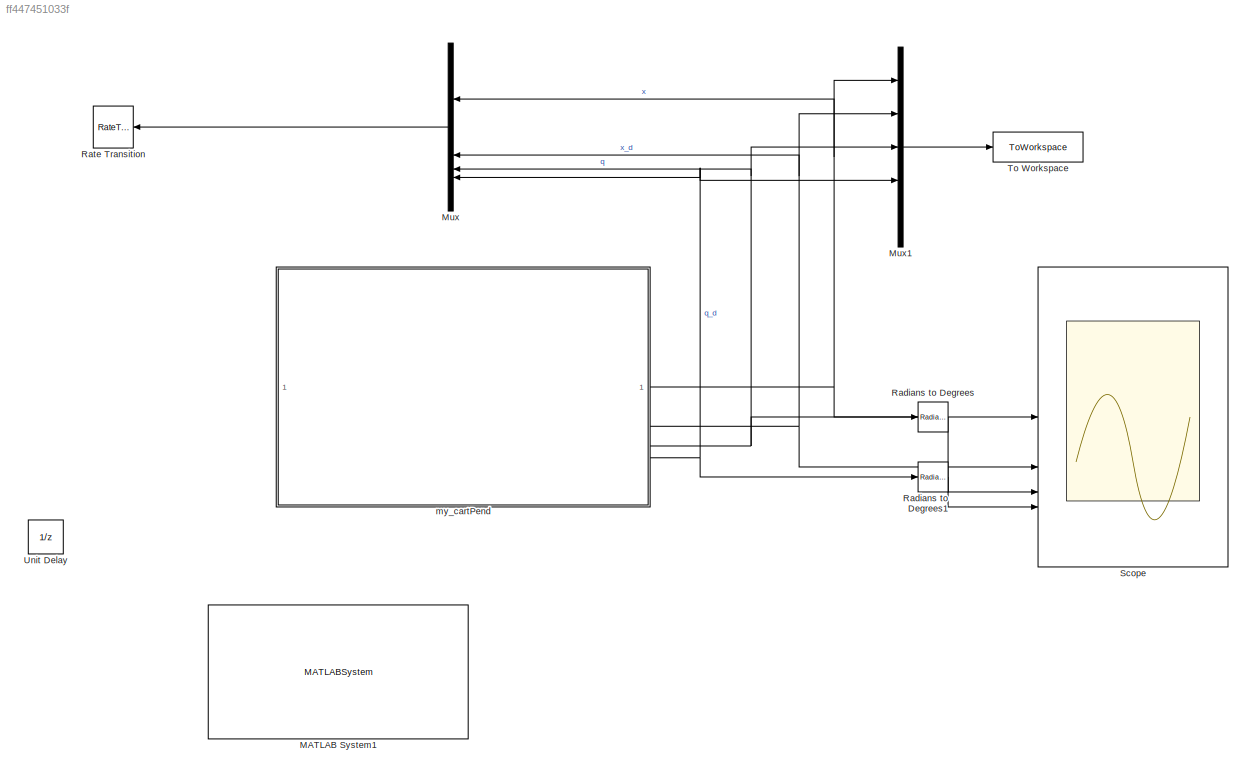
MODEL slx_ff447451033f
KIND model
CONFIG AbsTol = auto
CONFIG EnableMultiTasking = off
CONFIG FixedStep = 0.001
CONFIG MaxStep = auto
CONFIG MinStep = auto
CONFIG RelTol = 1e-3
CONFIG SampleTimeConstraint = Unconstrained
CONFIG SolverName = ode4
CONFIG StartTime = 0.0
CONFIG StopTime = 10.0
BLOCK [MATLABSystem] MATLAB System1
  MaskDisplay = disp('MPC_HAC_block');\nport_label('input',1,'u');\nport_label('output',1,'y');
  MaskType = MPC_HAC_block
  SimulateUsing = Interpreted execution
  System = MPC_HAC_block
BLOCK [Mux] Mux
  DisplayOption = bar
  NameLocation = top
BLOCK [Mux] Mux1
  DisplayOption = bar
  Inputs = 5
BLOCK [Reference] Radians to Degrees  REF=simulink_extras/Transformations/Radians
to Degrees
  SourceBlock = simulink_extras/Transformations/Radians\nto Degrees
  SourceType = RadiansToDegrees
BLOCK [Reference] Radians to Degrees1  REF=simulink_extras/Transformations/Radians
to Degrees
  SourceBlock = simulink_extras/Transformations/Radians\nto Degrees
  SourceType = RadiansToDegrees
BLOCK [RateTransition] Rate Transition
  InitialCondition = X0
  NameLocation = top
  OutPortSampleTime = 0.1
BLOCK [Scope] Scope
  Floating = off
  NumInputPorts = 5
  ScopeSpecificationString = Simulink.scopes.TimeScopeBlockCfg('CurrentConfiguration', extmgr.ConfigurationSet(extmgr.Configuration('Core','General UI',true,'FigureColor',[1 1 1]),extmgr.Configuration('Core','Source UI',true),extmgr.Configuration('Sources','WiredSimulink',true),extmgr.Configuration('Visuals','Time Domain',true,'TimeAxisLabels','All','SerializedDisplays',{struct('MinYLimReal','-0.43125','MaxYLimReal','0.05455'...<+7796ch>
BLOCK [ToWorkspace] To Workspace
  FixptAsFi = on
  MaxDataPoints = inf
  SampleTime = -1
  SaveFormat = Timeseries
  VariableName = data_MPC
BLOCK [UnitDelay] Unit Delay
  HasFrameUpgradeWarning = on
  NameLocation = top
  SampleTime = 0.1
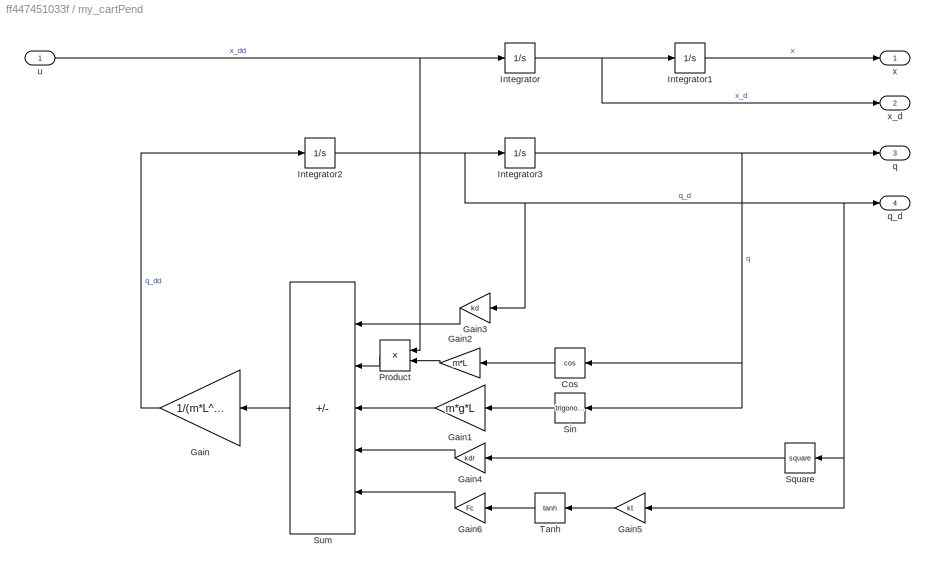
BLOCK [SubSystem] my_cartPend
BLOCK [Trigonometry] my_cartPend/Cos
  NameLocation = top
  Operator = cos
BLOCK [Gain] my_cartPend/Gain
  Gain = 1/(m*L^2+I)
  NameLocation = top
BLOCK [Gain] my_cartPend/Gain1
  Gain = m*g*L
  NameLocation = top
BLOCK [Gain] my_cartPend/Gain2
  Gain = m*L
  NameLocation = top
BLOCK [Gain] my_cartPend/Gain3
  Gain = kd
  NameLocation = top
BLOCK [Gain] my_cartPend/Gain4
  Gain = kdr
  NameLocation = top
BLOCK [Gain] my_cartPend/Gain5
  Gain = kt
  NameLocation = top
BLOCK [Gain] my_cartPend/Gain6
  Gain = Fc
  NameLocation = top
BLOCK [Integrator] my_cartPend/Integrator
BLOCK [Integrator] my_cartPend/Integrator1
BLOCK [Integrator] my_cartPend/Integrator2
BLOCK [Integrator] my_cartPend/Integrator3
  InitialCondition = init_angle
BLOCK [Product] my_cartPend/Product
  NameLocation = top
BLOCK [Trigonometry] my_cartPend/Sin
  NameLocation = top
BLOCK [Math] my_cartPend/Square
  NameLocation = top
  Operator = square
BLOCK [Sum] my_cartPend/Sum
  IconShape = rectangular
  Inputs = --+--
  NameLocation = top
BLOCK [Trigonometry] my_cartPend/Tanh
  NameLocation = top
  Operator = tanh
BLOCK [Outport] my_cartPend/q
  Port = 3
BLOCK [Outport] my_cartPend/q_d
  Port = 4
BLOCK [Inport] my_cartPend/u
BLOCK [Outport] my_cartPend/x
BLOCK [Outport] my_cartPend/x_d
  Port = 2
LINE Mux1:1 -> To Workspace:1
LINE Mux:1 -> Rate Transition:1
LINE Radians to Degrees1:1 -> Scope:4
LINE Radians to Degrees:1 -> Scope:3
LINE my_cartPend/Cos:1 -> my_cartPend/Gain2:1
LINE my_cartPend/Gain1:1 -> my_cartPend/Sum:3
LINE my_cartPend/Gain2:1 -> my_cartPend/Product:2
LINE my_cartPend/Gain3:1 -> my_cartPend/Sum:1
LINE my_cartPend/Gain4:1 -> my_cartPend/Sum:4
LINE my_cartPend/Gain5:1 -> my_cartPend/Tanh:1
LINE my_cartPend/Gain6:1 -> my_cartPend/Sum:5
LINE my_cartPend/Gain:1 -> my_cartPend/Integrator2:1
LINE my_cartPend/Integrator1:1 -> my_cartPend/x:1
NET my_cartPend/Integrator2:1 -> my_cartPend/Gain3:1, my_cartPend/Gain5:1, my_cartPend/Integrator3:1, my_cartPend/Square:1, my_cartPend/q_d:1
NET my_cartPend/Integrator3:1 -> my_cartPend/Cos:1, my_cartPend/Sin:1, my_cartPend/q:1
NET my_cartPend/Integrator:1 -> my_cartPend/Integrator1:1, my_cartPend/x_d:1
LINE my_cartPend/Product:1 -> my_cartPend/Sum:2
LINE my_cartPend/Sin:1 -> my_cartPend/Gain1:1
LINE my_cartPend/Square:1 -> my_cartPend/Gain4:1
LINE my_cartPend/Sum:1 -> my_cartPend/Gain:1
LINE my_cartPend/Tanh:1 -> my_cartPend/Gain6:1
NET my_cartPend/u:1 -> my_cartPend/Integrator:1, my_cartPend/Product:1
NET my_cartPend:1 -> Mux1:1, Mux:1, Scope:1
NET my_cartPend:2 -> Mux1:2, Mux:2, Scope:2
NET my_cartPend:3 -> Mux1:3, Mux:3, Radians to Degrees:1
NET my_cartPend:4 -> Mux1:4, Mux:4, Radians to Degrees1:1
note: NET lines group one-source signal fan-out (src -> all destinations, sorted); 1:1 wires keep LINE
